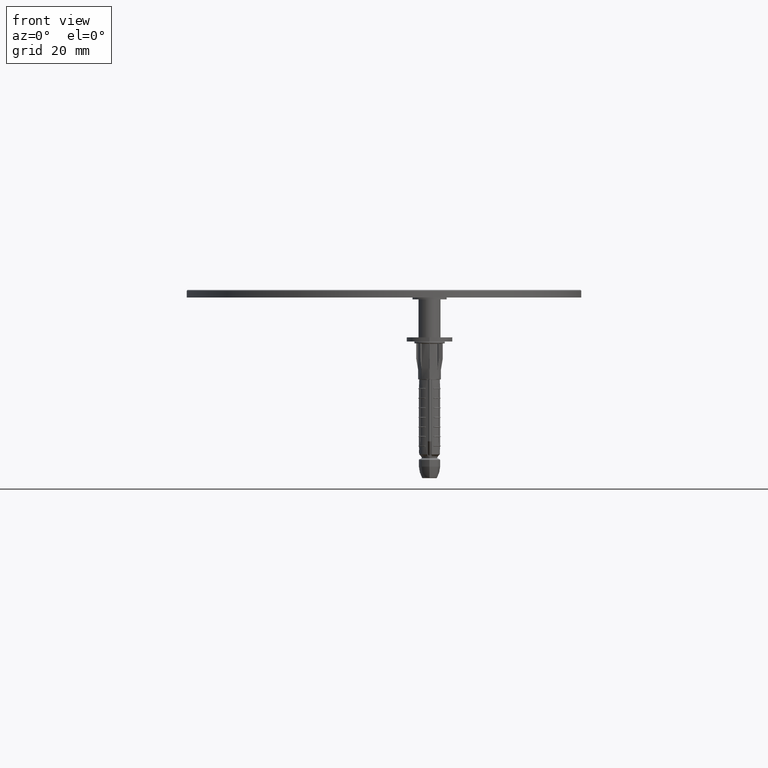
[diagram: clean part render]
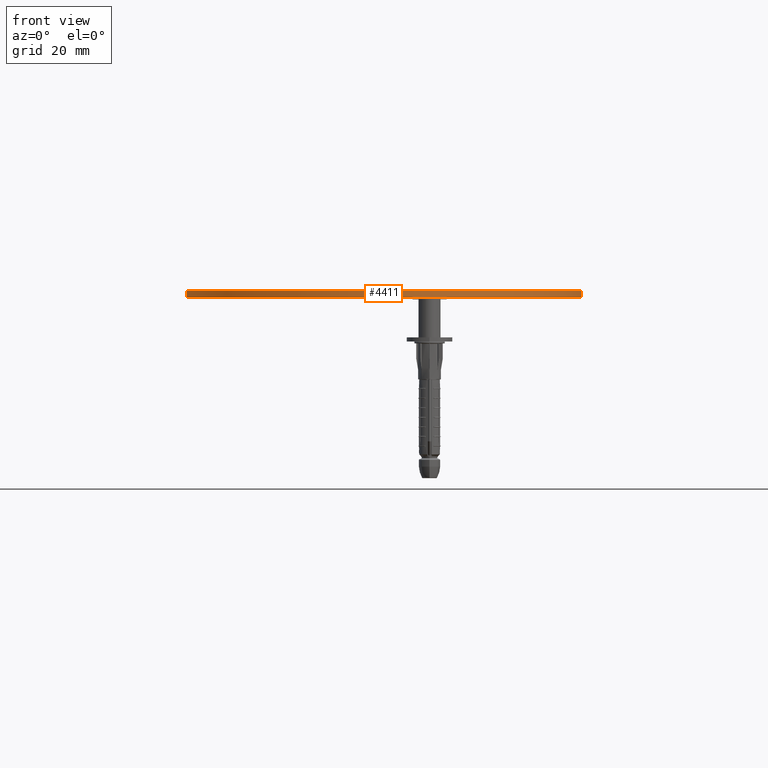
[diagram: same view with one face highlighted and labeled with its STEP entity id]
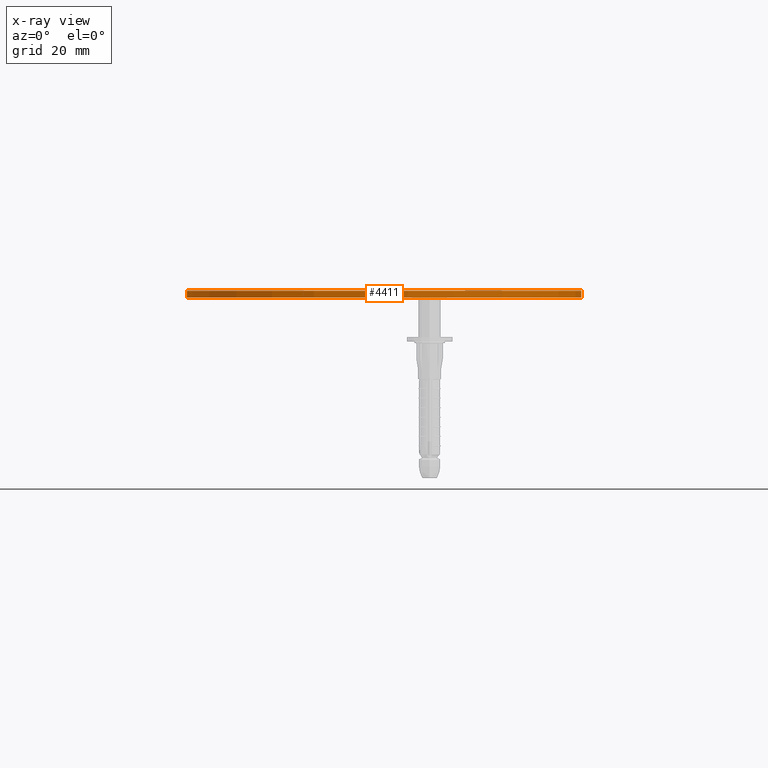
[diagram: x-ray of the same camera — body ghosted, the highlighted face saturated]
A machine part, front view. The second image highlights one B-rep face of the part: STEP entity #4411.
The next image is the same camera in x-ray: the body ghosted, the highlighted face saturated — about 0% of this face is hidden behind the body in this view.
In plain terms, the highlighted cylindrical surface (partial cylindrical patch) has radius 52 mm, axis along (-0, -0, -1).
Its self-contained STEP definition (entity closure, byte-faithful):
#639 = VERTEX_POINT ( 'NONE', #31760 ) ;
#1826 = DIRECTION ( 'NONE',  ( -1.000000000000000000, 0.000000000000000000, 0.000000000000000000 ) ) ;
#2393 = DIRECTION ( 'NONE',  ( -0.000000000000000000, -0.000000000000000000, -1.000000000000000000 ) ) ;
#2525 = DIRECTION ( 'NONE',  ( -0.000000000000000000, -0.000000000000000000, -1.000000000000000000 ) ) ;
#3073 = DIRECTION ( 'NONE',  ( -1.000000000000000000, 0.000000000000000000, 0.000000000000000000 ) ) ;
#3869 = CARTESIAN_POINT ( 'NONE',  ( -52.00000000000000711, 52.00000000000000000, 0.000000000000000000 ) ) ;
#4411 = ADVANCED_FACE ( 'NONE', ( #11379 ), #33409, .T. ) ;
#5104 = VERTEX_POINT ( 'NONE', #31679 ) ;
#5672 = EDGE_CURVE ( 'NONE', #15860, #5104, #8472, .T. ) ;
#6039 = EDGE_CURVE ( 'NONE', #5104, #37110, #14192, .T. ) ;
#8016 = ORIENTED_EDGE ( 'NONE', *, *, #25012, .F. ) ;
#8472 = CIRCLE ( 'NONE', #10305, 52.00000000000000711 ) ;
#10305 = AXIS2_PLACEMENT_3D ( 'NONE', #18067, #21518, #3073 ) ;
#11379 = FACE_OUTER_BOUND ( 'NONE', #31064, .T. ) ;
#12784 = ORIENTED_EDGE ( 'NONE', *, *, #13648, .T. ) ;
#13648 = EDGE_CURVE ( 'NONE', #37110, #639, #20109, .T. ) ;
#14192 = LINE ( 'NONE', #20567, #15143 ) ;
#15143 = VECTOR ( 'NONE', #2393, 1000.000000000000000 ) ;
#15860 = VERTEX_POINT ( 'NONE', #27169 ) ;
#17551 = ORIENTED_EDGE ( 'NONE', *, *, #5672, .T. ) ;
#18067 = CARTESIAN_POINT ( 'NONE',  ( 0.000000000000000000, 52.00000000000000000, 1.750000000000000000 ) ) ;
#19121 = ORIENTED_EDGE ( 'NONE', *, *, #6039, .T. ) ;
#20109 = CIRCLE ( 'NONE', #28092, 52.00000000000000711 ) ;
#20567 = CARTESIAN_POINT ( 'NONE',  ( -52.00000000000000711, 52.00000000000000000, 2.000000000000000000 ) ) ;
#20838 = CARTESIAN_POINT ( 'NONE',  ( 52.00000000000000711, 52.00000000000000000, 2.000000000000000000 ) ) ;
#21518 = DIRECTION ( 'NONE',  ( -0.000000000000000000, -0.000000000000000000, -1.000000000000000000 ) ) ;
#24323 = VECTOR ( 'NONE', #2525, 1000.000000000000000 ) ;
#25012 = EDGE_CURVE ( 'NONE', #15860, #639, #35327, .T. ) ;
#25841 = DIRECTION ( 'NONE',  ( 1.000000000000000000, 0.000000000000000000, 0.000000000000000000 ) ) ;
#27169 = CARTESIAN_POINT ( 'NONE',  ( 52.00000000000000711, 52.00000000000000000, 1.750000000000000000 ) ) ;
#28092 = AXIS2_PLACEMENT_3D ( 'NONE', #32021, #34551, #25841 ) ;
#29243 = CARTESIAN_POINT ( 'NONE',  ( 0.000000000000000000, 52.00000000000000000, 2.000000000000000000 ) ) ;
#29321 = AXIS2_PLACEMENT_3D ( 'NONE', #29243, #38427, #1826 ) ;
#31064 = EDGE_LOOP ( 'NONE', ( #17551, #19121, #12784, #8016 ) ) ;
#31679 = CARTESIAN_POINT ( 'NONE',  ( -52.00000000000000711, 52.00000000000000000, 1.750000000000000000 ) ) ;
#31760 = CARTESIAN_POINT ( 'NONE',  ( 52.00000000000000711, 52.00000000000000000, 0.000000000000000000 ) ) ;
#32021 = CARTESIAN_POINT ( 'NONE',  ( 0.000000000000000000, 52.00000000000000000, 0.000000000000000000 ) ) ;
#33409 = CYLINDRICAL_SURFACE ( 'NONE', #29321, 52.00000000000000711 ) ;
#34551 = DIRECTION ( 'NONE',  ( 0.000000000000000000, 0.000000000000000000, 1.000000000000000000 ) ) ;
#35327 = LINE ( 'NONE', #20838, #24323 ) ;
#37110 = VERTEX_POINT ( 'NONE', #3869 ) ;
#38427 = DIRECTION ( 'NONE',  ( -0.000000000000000000, -0.000000000000000000, -1.000000000000000000 ) ) ;